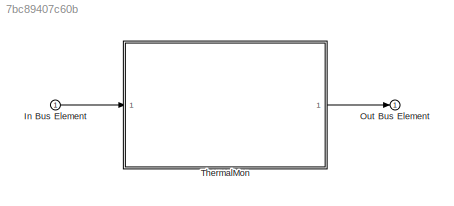
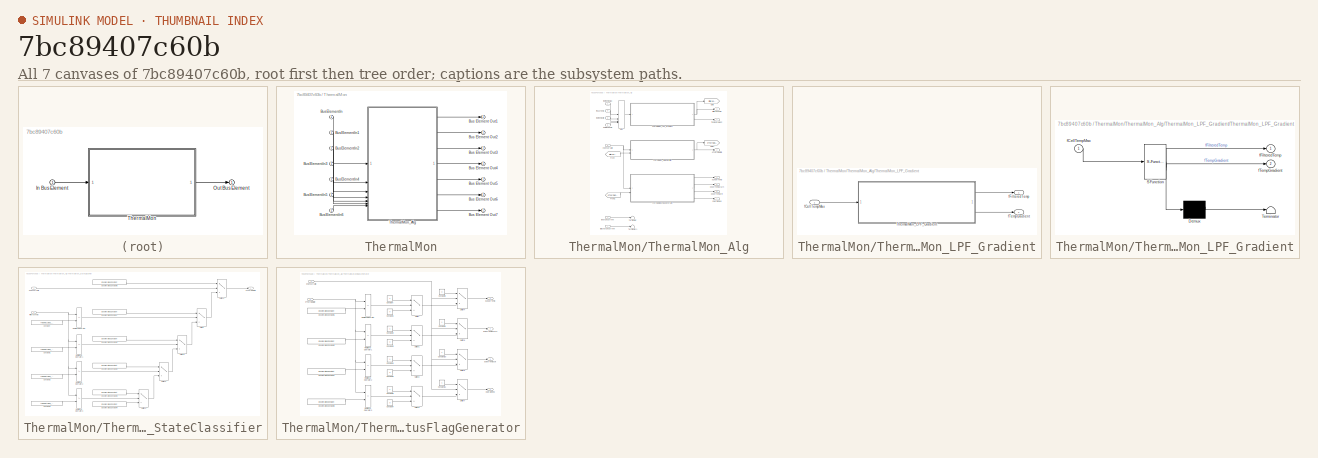
[diagram: thumbnail index - all 7 canvases of the model, root first then tree order]
MODEL slx_7bc89407c60b
KIND model
CONFIG AbsTol = auto
CONFIG EnableMultiTasking = off
CONFIG FixedStep = auto
CONFIG MaxStep = auto
CONFIG MinStep = auto
CONFIG RelTol = 1e-3
CONFIG SampleTimeConstraint = Unconstrained
CONFIG SolverName = FixedStepAuto
CONFIG StartTime = 0.0
CONFIG StopTime = 10.0
BLOCK [Inport] In Bus Element
BLOCK [Outport] Out Bus Element
BLOCK [SubSystem] ThermalMon
  RTWFcnNameOpts = Use subsystem name
BLOCK [Outport] ThermalMon/Bus Element Out1
BLOCK [Outport] ThermalMon/Bus Element Out2
BLOCK [Outport] ThermalMon/Bus Element Out3
BLOCK [Outport] ThermalMon/Bus Element Out4
BLOCK [Outport] ThermalMon/Bus Element Out5
BLOCK [Outport] ThermalMon/Bus Element Out6
BLOCK [Outport] ThermalMon/Bus Element Out7
BLOCK [Inport] ThermalMon/BusElementIn
BLOCK [Inport] ThermalMon/BusElementIn1
BLOCK [Inport] ThermalMon/BusElementIn2
BLOCK [Inport] ThermalMon/BusElementIn3
BLOCK [Inport] ThermalMon/BusElementIn4
BLOCK [Inport] ThermalMon/BusElementIn5
BLOCK [Inport] ThermalMon/BusElementIn6
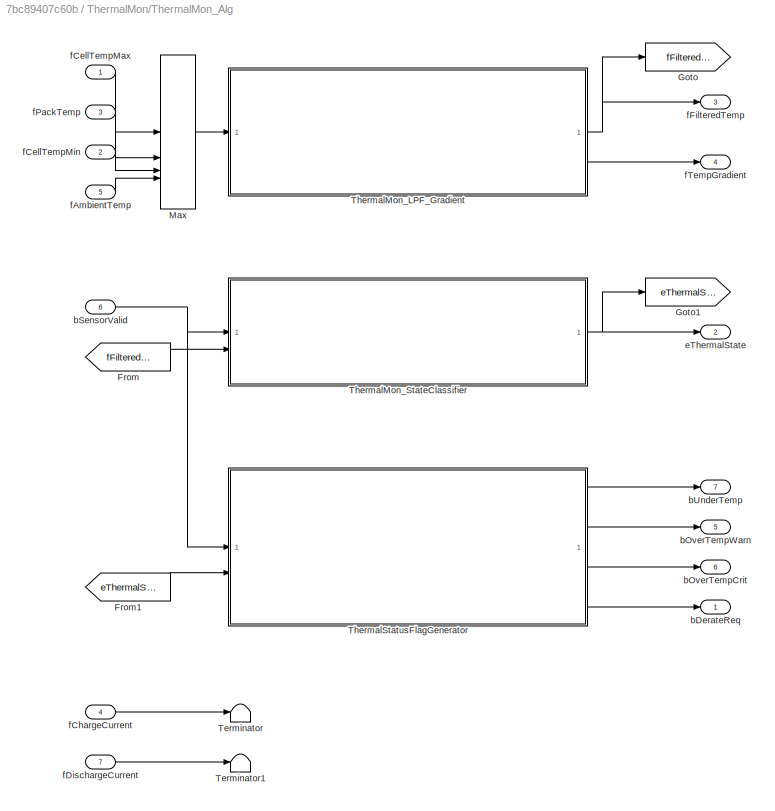
BLOCK [SubSystem] ThermalMon/ThermalMon_Alg
  RTWFcnNameOpts = Use subsystem name
BLOCK [From] ThermalMon/ThermalMon_Alg/From
  GotoTag = fFilteredTemp
BLOCK [From] ThermalMon/ThermalMon_Alg/From1
  GotoTag = eThermalState
BLOCK [Goto] ThermalMon/ThermalMon_Alg/Goto
  GotoTag = fFilteredTemp
BLOCK [Goto] ThermalMon/ThermalMon_Alg/Goto1
  GotoTag = eThermalState
BLOCK [MinMax] ThermalMon/ThermalMon_Alg/Max
  Function = max
  Inputs = 4
  OutDataTypeStr = single
BLOCK [Terminator] ThermalMon/ThermalMon_Alg/Terminator
BLOCK [Terminator] ThermalMon/ThermalMon_Alg/Terminator1
BLOCK [SubSystem] ThermalMon/ThermalMon_Alg/ThermalMon_LPF_Gradient
  RTWFcnNameOpts = Use subsystem name
  RTWSystemCode = Nonreusable function
  TreatAsAtomicUnit = on
BLOCK [SubSystem] ThermalMon/ThermalMon_Alg/ThermalMon_LPF_Gradient/ThermalMon_LPF_Gradient
  ErrorFcn = Stateflow.Translate.translate
  PermitHierarchicalResolution = ExplicitOnly
  SFBlockType = MATLAB Function
  TreatAsAtomicUnit = on
BLOCK [Demux] ThermalMon/ThermalMon_Alg/ThermalMon_LPF_Gradient/ThermalMon_LPF_Gradient/ Demux 
  Outputs = 1
BLOCK [S-Function] ThermalMon/ThermalMon_Alg/ThermalMon_LPF_Gradient/ThermalMon_LPF_Gradient/ SFunction 
  EnableBusSupport = on
  FunctionName = sf_sfun
  Parameters = THERMALMON_FILTER_ALPHA,THERMALMON_TS_SEC
  PortCounts = [1 3]
  SFcnIsStateOwnerBlock = off
  SFunctionDeploymentMode = off
  Tag = Stateflow S-Function 2
BLOCK [Terminator] ThermalMon/ThermalMon_Alg/ThermalMon_LPF_Gradient/ThermalMon_LPF_Gradient/ Terminator 
BLOCK [Inport] ThermalMon/ThermalMon_Alg/ThermalMon_LPF_Gradient/ThermalMon_LPF_Gradient/fCellTempMax
BLOCK [Outport] ThermalMon/ThermalMon_Alg/ThermalMon_LPF_Gradient/ThermalMon_LPF_Gradient/fFilteredTemp
BLOCK [Outport] ThermalMon/ThermalMon_Alg/ThermalMon_LPF_Gradient/ThermalMon_LPF_Gradient/fTempGradient
  Port = 2
BLOCK [Inport] ThermalMon/ThermalMon_Alg/ThermalMon_LPF_Gradient/fCellTempMax
BLOCK [Outport] ThermalMon/ThermalMon_Alg/ThermalMon_LPF_Gradient/fFilteredTemp
BLOCK [Outport] ThermalMon/ThermalMon_Alg/ThermalMon_LPF_Gradient/fTempGradient
  Port = 2
BLOCK [SubSystem] ThermalMon/ThermalMon_Alg/ThermalMon_StateClassifier
  RTWFcnNameOpts = Use subsystem name
  RTWSystemCode = Nonreusable function
  TreatAsAtomicUnit = on
BLOCK [Constant] ThermalMon/ThermalMon_Alg/ThermalMon_StateClassifier/Constant
  NameLocation = top
  Value = THERMALMON_T_UNDER_TH
BLOCK [Constant] ThermalMon/ThermalMon_Alg/ThermalMon_StateClassifier/Constant1
  NameLocation = top
  Value = THERMALMON_T_WARNING_TH
BLOCK [Constant] ThermalMon/ThermalMon_Alg/ThermalMon_StateClassifier/Constant2
  NameLocation = top
  Value = THERMALMON_T_OVERHEAT_TH
BLOCK [Constant] ThermalMon/ThermalMon_Alg/ThermalMon_StateClassifier/Constant3
  NameLocation = top
  Value = THERMALMON_T_CRITICAL_TH
BLOCK [Reference] ThermalMon/ThermalMon_Alg/ThermalMon_StateClassifier/Enumerated Constant  REF=simulink/Sources/Enumerated
Constant
  SourceBlock = simulink/Sources/Enumerated\nConstant
  SourceType = Enumerated Constant
BLOCK [Reference] ThermalMon/ThermalMon_Alg/ThermalMon_StateClassifier/Enumerated Constant1  REF=simulink/Sources/Enumerated
Constant
  SourceBlock = simulink/Sources/Enumerated\nConstant
  SourceType = Enumerated Constant
BLOCK [Reference] ThermalMon/ThermalMon_Alg/ThermalMon_StateClassifier/Enumerated Constant2  REF=simulink/Sources/Enumerated
Constant
  SourceBlock = simulink/Sources/Enumerated\nConstant
  SourceType = Enumerated Constant
BLOCK [Reference] ThermalMon/ThermalMon_Alg/ThermalMon_StateClassifier/Enumerated Constant3  REF=simulink/Sources/Enumerated
Constant
  SourceBlock = simulink/Sources/Enumerated\nConstant
  SourceType = Enumerated Constant
BLOCK [Reference] ThermalMon/ThermalMon_Alg/ThermalMon_StateClassifier/Enumerated Constant4  REF=simulink/Sources/Enumerated
Constant
  SourceBlock = simulink/Sources/Enumerated\nConstant
  SourceType = Enumerated Constant
BLOCK [Reference] ThermalMon/ThermalMon_Alg/ThermalMon_StateClassifier/Enumerated Constant5  REF=simulink/Sources/Enumerated
Constant
  SourceBlock = simulink/Sources/Enumerated\nConstant
  SourceType = Enumerated Constant
BLOCK [RelationalOperator] ThermalMon/ThermalMon_Alg/ThermalMon_StateClassifier/Relational Operator
  InputSameDT = off
  Operator = <=
  OutDataTypeStr = boolean
  RndMeth = Simplest
BLOCK [RelationalOperator] ThermalMon/ThermalMon_Alg/ThermalMon_StateClassifier/Relational Operator1
  InputSameDT = off
  Operator = <=
  OutDataTypeStr = boolean
  RndMeth = Simplest
BLOCK [RelationalOperator] ThermalMon/ThermalMon_Alg/ThermalMon_StateClassifier/Relational Operator2
  InputSameDT = off
  Operator = <=
  OutDataTypeStr = boolean
  RndMeth = Simplest
BLOCK [RelationalOperator] ThermalMon/ThermalMon_Alg/ThermalMon_StateClassifier/Relational Operator3
  InputSameDT = off
  Operator = <=
  OutDataTypeStr = boolean
  RndMeth = Simplest
BLOCK [Switch] ThermalMon/ThermalMon_Alg/ThermalMon_StateClassifier/Switch
  Criteria = u2 ~= 0
  InputSameDT = off
  SaturateOnIntegerOverflow = off
BLOCK [Switch] ThermalMon/ThermalMon_Alg/ThermalMon_StateClassifier/Switch1
  Criteria = u2 ~= 0
  InputSameDT = off
  SaturateOnIntegerOverflow = off
BLOCK [Switch] ThermalMon/ThermalMon_Alg/ThermalMon_StateClassifier/Switch2
  Criteria = u2 ~= 0
  InputSameDT = off
  SaturateOnIntegerOverflow = off
BLOCK [Switch] ThermalMon/ThermalMon_Alg/ThermalMon_StateClassifier/Switch3
  Criteria = u2 ~= 0
  InputSameDT = off
  SaturateOnIntegerOverflow = off
BLOCK [Switch] ThermalMon/ThermalMon_Alg/ThermalMon_StateClassifier/Switch4
  Criteria = u2 ~= 0
  InputSameDT = off
  SaturateOnIntegerOverflow = off
BLOCK [Inport] ThermalMon/ThermalMon_Alg/ThermalMon_StateClassifier/bSensorValid
BLOCK [Outport] ThermalMon/ThermalMon_Alg/ThermalMon_StateClassifier/eThermalState
BLOCK [Inport] ThermalMon/ThermalMon_Alg/ThermalMon_StateClassifier/fFilteredTemp
  Port = 2
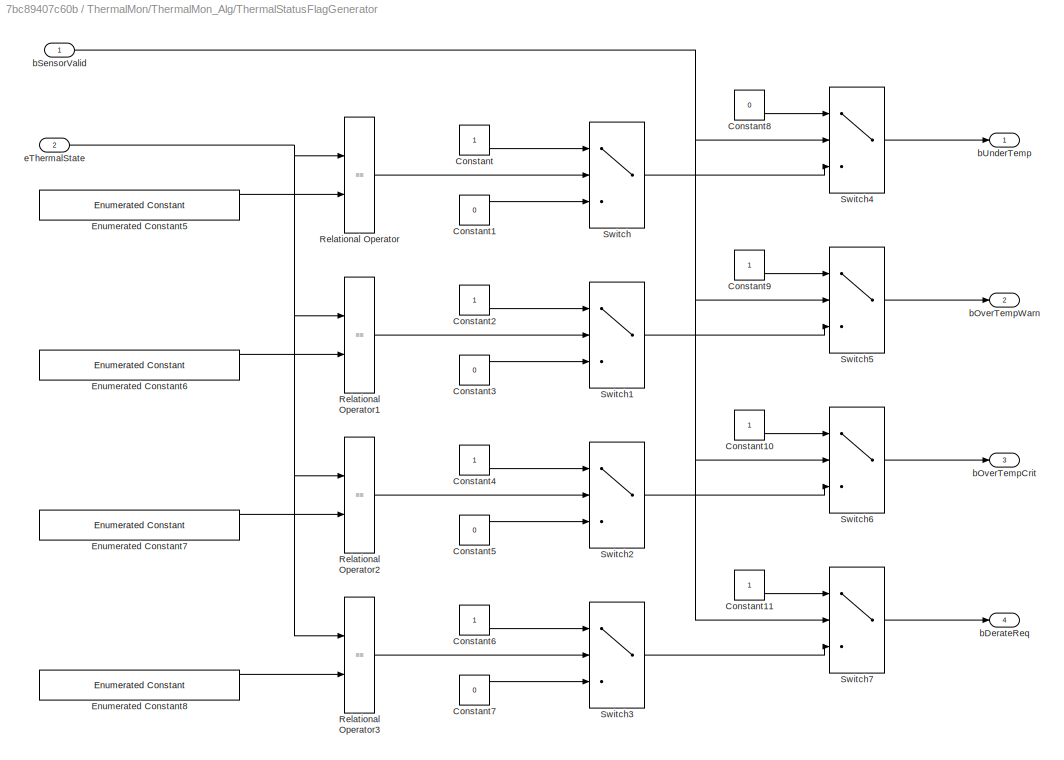
BLOCK [SubSystem] ThermalMon/ThermalMon_Alg/ThermalStatusFlagGenerator
  RTWFcnNameOpts = Use subsystem name
  RTWSystemCode = Nonreusable function
  TreatAsAtomicUnit = on
BLOCK [Constant] ThermalMon/ThermalMon_Alg/ThermalStatusFlagGenerator/Constant
  OutDataTypeStr = boolean
BLOCK [Constant] ThermalMon/ThermalMon_Alg/ThermalStatusFlagGenerator/Constant1
  OutDataTypeStr = boolean
  Value = 0
BLOCK [Constant] ThermalMon/ThermalMon_Alg/ThermalStatusFlagGenerator/Constant10
  OutDataTypeStr = boolean
BLOCK [Constant] ThermalMon/ThermalMon_Alg/ThermalStatusFlagGenerator/Constant11
  OutDataTypeStr = boolean
BLOCK [Constant] ThermalMon/ThermalMon_Alg/ThermalStatusFlagGenerator/Constant2
  OutDataTypeStr = boolean
BLOCK [Constant] ThermalMon/ThermalMon_Alg/ThermalStatusFlagGenerator/Constant3
  OutDataTypeStr = boolean
  Value = 0
BLOCK [Constant] ThermalMon/ThermalMon_Alg/ThermalStatusFlagGenerator/Constant4
  OutDataTypeStr = boolean
BLOCK [Constant] ThermalMon/ThermalMon_Alg/ThermalStatusFlagGenerator/Constant5
  OutDataTypeStr = boolean
  Value = 0
BLOCK [Constant] ThermalMon/ThermalMon_Alg/ThermalStatusFlagGenerator/Constant6
  OutDataTypeStr = boolean
BLOCK [Constant] ThermalMon/ThermalMon_Alg/ThermalStatusFlagGenerator/Constant7
  OutDataTypeStr = boolean
  Value = 0
BLOCK [Constant] ThermalMon/ThermalMon_Alg/ThermalStatusFlagGenerator/Constant8
  OutDataTypeStr = boolean
  Value = 0
BLOCK [Constant] ThermalMon/ThermalMon_Alg/ThermalStatusFlagGenerator/Constant9
  OutDataTypeStr = boolean
BLOCK [Reference] ThermalMon/ThermalMon_Alg/ThermalStatusFlagGenerator/Enumerated Constant5  REF=simulink/Sources/Enumerated
Constant
  SourceBlock = simulink/Sources/Enumerated\nConstant
  SourceType = Enumerated Constant
BLOCK [Reference] ThermalMon/ThermalMon_Alg/ThermalStatusFlagGenerator/Enumerated Constant6  REF=simulink/Sources/Enumerated
Constant
  SourceBlock = simulink/Sources/Enumerated\nConstant
  SourceType = Enumerated Constant
BLOCK [Reference] ThermalMon/ThermalMon_Alg/ThermalStatusFlagGenerator/Enumerated Constant7  REF=simulink/Sources/Enumerated
Constant
  SourceBlock = simulink/Sources/Enumerated\nConstant
  SourceType = Enumerated Constant
BLOCK [Reference] ThermalMon/ThermalMon_Alg/ThermalStatusFlagGenerator/Enumerated Constant8  REF=simulink/Sources/Enumerated
Constant
  SourceBlock = simulink/Sources/Enumerated\nConstant
  SourceType = Enumerated Constant
BLOCK [RelationalOperator] ThermalMon/ThermalMon_Alg/ThermalStatusFlagGenerator/Relational Operator
  InputSameDT = off
  Operator = ==
  OutDataTypeStr = boolean
  RndMeth = Simplest
BLOCK [RelationalOperator] ThermalMon/ThermalMon_Alg/ThermalStatusFlagGenerator/Relational Operator1
  InputSameDT = off
  Operator = ==
  OutDataTypeStr = boolean
  RndMeth = Simplest
BLOCK [RelationalOperator] ThermalMon/ThermalMon_Alg/ThermalStatusFlagGenerator/Relational Operator2
  InputSameDT = off
  Operator = ==
  OutDataTypeStr = boolean
  RndMeth = Simplest
BLOCK [RelationalOperator] ThermalMon/ThermalMon_Alg/ThermalStatusFlagGenerator/Relational Operator3
  InputSameDT = off
  Operator = ==
  OutDataTypeStr = boolean
  RndMeth = Simplest
BLOCK [Switch] ThermalMon/ThermalMon_Alg/ThermalStatusFlagGenerator/Switch
  Criteria = u2 ~= 0
  InputSameDT = off
  SaturateOnIntegerOverflow = off
BLOCK [Switch] ThermalMon/ThermalMon_Alg/ThermalStatusFlagGenerator/Switch1
  Criteria = u2 ~= 0
  InputSameDT = off
  SaturateOnIntegerOverflow = off
BLOCK [Switch] ThermalMon/ThermalMon_Alg/ThermalStatusFlagGenerator/Switch2
  Criteria = u2 ~= 0
  InputSameDT = off
  SaturateOnIntegerOverflow = off
BLOCK [Switch] ThermalMon/ThermalMon_Alg/ThermalStatusFlagGenerator/Switch3
  Criteria = u2 ~= 0
  InputSameDT = off
  SaturateOnIntegerOverflow = off
BLOCK [Switch] ThermalMon/ThermalMon_Alg/ThermalStatusFlagGenerator/Switch4
  Criteria = u2 ~= 0
  InputSameDT = off
  SaturateOnIntegerOverflow = off
BLOCK [Switch] ThermalMon/ThermalMon_Alg/ThermalStatusFlagGenerator/Switch5
  Criteria = u2 ~= 0
  InputSameDT = off
  SaturateOnIntegerOverflow = off
BLOCK [Switch] ThermalMon/ThermalMon_Alg/ThermalStatusFlagGenerator/Switch6
  Criteria = u2 ~= 0
  InputSameDT = off
  SaturateOnIntegerOverflow = off
BLOCK [Switch] ThermalMon/ThermalMon_Alg/ThermalStatusFlagGenerator/Switch7
  Criteria = u2 ~= 0
  InputSameDT = off
  SaturateOnIntegerOverflow = off
BLOCK [Outport] ThermalMon/ThermalMon_Alg/ThermalStatusFlagGenerator/bDerateReq
  Port = 4
BLOCK [Outport] ThermalMon/ThermalMon_Alg/ThermalStatusFlagGenerator/bOverTempCrit
  Port = 3
BLOCK [Outport] ThermalMon/ThermalMon_Alg/ThermalStatusFlagGenerator/bOverTempWarn
  Port = 2
BLOCK [Inport] ThermalMon/ThermalMon_Alg/ThermalStatusFlagGenerator/bSensorValid
BLOCK [Outport] ThermalMon/ThermalMon_Alg/ThermalStatusFlagGenerator/bUnderTemp
BLOCK [Inport] ThermalMon/ThermalMon_Alg/ThermalStatusFlagGenerator/eThermalState
  Port = 2
BLOCK [Outport] ThermalMon/ThermalMon_Alg/bDerateReq
  OutDataTypeStr = boolean
BLOCK [Outport] ThermalMon/ThermalMon_Alg/bOverTempCrit
  OutDataTypeStr = boolean
  Port = 6
BLOCK [Outport] ThermalMon/ThermalMon_Alg/bOverTempWarn
  OutDataTypeStr = boolean
  Port = 5
BLOCK [Inport] ThermalMon/ThermalMon_Alg/bSensorValid
  OutDataTypeStr = boolean
  Port = 6
BLOCK [Outport] ThermalMon/ThermalMon_Alg/bUnderTemp
  OutDataTypeStr = boolean
  Port = 7
BLOCK [Outport] ThermalMon/ThermalMon_Alg/eThermalState
  OutDataTypeStr = Enum: ThermalState_e
  Port = 2
BLOCK [Inport] ThermalMon/ThermalMon_Alg/fAmbientTemp
  OutDataTypeStr = single
  Port = 5
BLOCK [Inport] ThermalMon/ThermalMon_Alg/fCellTempMax
  OutDataTypeStr = single
BLOCK [Inport] ThermalMon/ThermalMon_Alg/fCellTempMin
  OutDataTypeStr = single
  Port = 2
BLOCK [Inport] ThermalMon/ThermalMon_Alg/fChargeCurrent
  OutDataTypeStr = single
  Port = 4
BLOCK [Inport] ThermalMon/ThermalMon_Alg/fDischargeCurrent
  OutDataTypeStr = single
  Port = 7
BLOCK [Outport] ThermalMon/ThermalMon_Alg/fFilteredTemp
  OutDataTypeStr = single
  Port = 3
BLOCK [Inport] ThermalMon/ThermalMon_Alg/fPackTemp
  OutDataTypeStr = single
  Port = 3
BLOCK [Outport] ThermalMon/ThermalMon_Alg/fTempGradient
  OutDataTypeStr = single
  Port = 4
LINE In Bus Element:1 -> ThermalMon:1
LINE ThermalMon/BusElementIn1:1 -> ThermalMon/ThermalMon_Alg:2
LINE ThermalMon/BusElementIn2:1 -> ThermalMon/ThermalMon_Alg:3
LINE ThermalMon/BusElementIn3:1 -> ThermalMon/ThermalMon_Alg:4
LINE ThermalMon/BusElementIn4:1 -> ThermalMon/ThermalMon_Alg:5
LINE ThermalMon/BusElementIn5:1 -> ThermalMon/ThermalMon_Alg:6
LINE ThermalMon/BusElementIn6:1 -> ThermalMon/ThermalMon_Alg:7
LINE ThermalMon/BusElementIn:1 -> ThermalMon/ThermalMon_Alg:1
LINE ThermalMon/ThermalMon_Alg/From1:1 -> ThermalMon/ThermalMon_Alg/ThermalStatusFlagGenerator:2
LINE ThermalMon/ThermalMon_Alg/From:1 -> ThermalMon/ThermalMon_Alg/ThermalMon_StateClassifier:2
LINE ThermalMon/ThermalMon_Alg/Max:1 -> ThermalMon/ThermalMon_Alg/ThermalMon_LPF_Gradient:1
LINE ThermalMon/ThermalMon_Alg/ThermalMon_LPF_Gradient/ThermalMon_LPF_Gradient:1 -> ThermalMon/ThermalMon_Alg/ThermalMon_LPF_Gradient/fFilteredTemp:1
LINE ThermalMon/ThermalMon_Alg/ThermalMon_LPF_Gradient/ThermalMon_LPF_Gradient:2 -> ThermalMon/ThermalMon_Alg/ThermalMon_LPF_Gradient/fTempGradient:1
LINE ThermalMon/ThermalMon_Alg/ThermalMon_LPF_Gradient/fCellTempMax:1 -> ThermalMon/ThermalMon_Alg/ThermalMon_LPF_Gradient/ThermalMon_LPF_Gradient:1
NET ThermalMon/ThermalMon_Alg/ThermalMon_LPF_Gradient:1 -> ThermalMon/ThermalMon_Alg/Goto:1, ThermalMon/ThermalMon_Alg/fFilteredTemp:1
LINE ThermalMon/ThermalMon_Alg/ThermalMon_LPF_Gradient:2 -> ThermalMon/ThermalMon_Alg/fTempGradient:1
LINE ThermalMon/ThermalMon_Alg/ThermalMon_StateClassifier/Constant1:1 -> ThermalMon/ThermalMon_Alg/ThermalMon_StateClassifier/Relational Operator1:2
LINE ThermalMon/ThermalMon_Alg/ThermalMon_StateClassifier/Constant2:1 -> ThermalMon/ThermalMon_Alg/ThermalMon_StateClassifier/Relational Operator2:2
LINE ThermalMon/ThermalMon_Alg/ThermalMon_StateClassifier/Constant3:1 -> ThermalMon/ThermalMon_Alg/ThermalMon_StateClassifier/Relational Operator3:2
LINE ThermalMon/ThermalMon_Alg/ThermalMon_StateClassifier/Constant:1 -> ThermalMon/ThermalMon_Alg/ThermalMon_StateClassifier/Relational Operator:2
LINE ThermalMon/ThermalMon_Alg/ThermalMon_StateClassifier/Enumerated Constant1:1 -> ThermalMon/ThermalMon_Alg/ThermalMon_StateClassifier/Switch1:1
LINE ThermalMon/ThermalMon_Alg/ThermalMon_StateClassifier/Enumerated Constant2:1 -> ThermalMon/ThermalMon_Alg/ThermalMon_StateClassifier/Switch2:1
LINE ThermalMon/ThermalMon_Alg/ThermalMon_StateClassifier/Enumerated Constant3:1 -> ThermalMon/ThermalMon_Alg/ThermalMon_StateClassifier/Switch3:1
LINE ThermalMon/ThermalMon_Alg/ThermalMon_StateClassifier/Enumerated Constant4:1 -> ThermalMon/ThermalMon_Alg/ThermalMon_StateClassifier/Switch3:3
LINE ThermalMon/ThermalMon_Alg/ThermalMon_StateClassifier/Enumerated Constant5:1 -> ThermalMon/ThermalMon_Alg/ThermalMon_StateClassifier/Switch4:1
LINE ThermalMon/ThermalMon_Alg/ThermalMon_StateClassifier/Enumerated Constant:1 -> ThermalMon/ThermalMon_Alg/ThermalMon_StateClassifier/Switch:1
LINE ThermalMon/ThermalMon_Alg/ThermalMon_StateClassifier/Relational Operator1:1 -> ThermalMon/ThermalMon_Alg/ThermalMon_StateClassifier/Switch1:2
LINE ThermalMon/ThermalMon_Alg/ThermalMon_StateClassifier/Relational Operator2:1 -> ThermalMon/ThermalMon_Alg/ThermalMon_StateClassifier/Switch2:2
LINE ThermalMon/ThermalMon_Alg/ThermalMon_StateClassifier/Relational Operator3:1 -> ThermalMon/ThermalMon_Alg/ThermalMon_StateClassifier/Switch3:2
LINE ThermalMon/ThermalMon_Alg/ThermalMon_StateClassifier/Relational Operator:1 -> ThermalMon/ThermalMon_Alg/ThermalMon_StateClassifier/Switch:2
LINE ThermalMon/ThermalMon_Alg/ThermalMon_StateClassifier/Switch1:1 -> ThermalMon/ThermalMon_Alg/ThermalMon_StateClassifier/Switch:3
LINE ThermalMon/ThermalMon_Alg/ThermalMon_StateClassifier/Switch2:1 -> ThermalMon/ThermalMon_Alg/ThermalMon_StateClassifier/Switch1:3
LINE ThermalMon/ThermalMon_Alg/ThermalMon_StateClassifier/Switch3:1 -> ThermalMon/ThermalMon_Alg/ThermalMon_StateClassifier/Switch2:3
LINE ThermalMon/ThermalMon_Alg/ThermalMon_StateClassifier/Switch4:1 -> ThermalMon/ThermalMon_Alg/ThermalMon_StateClassifier/eThermalState:1
LINE ThermalMon/ThermalMon_Alg/ThermalMon_StateClassifier/Switch:1 -> ThermalMon/ThermalMon_Alg/ThermalMon_StateClassifier/Switch4:3
LINE ThermalMon/ThermalMon_Alg/ThermalMon_StateClassifier/bSensorValid:1 -> ThermalMon/ThermalMon_Alg/ThermalMon_StateClassifier/Switch4:2
NET ThermalMon/ThermalMon_Alg/ThermalMon_StateClassifier/fFilteredTemp:1 -> ThermalMon/ThermalMon_Alg/ThermalMon_StateClassifier/Relational Operator1:1, ThermalMon/ThermalMon_Alg/ThermalMon_StateClassifier/Relational Operator2:1, ThermalMon/ThermalMon_Alg/ThermalMon_StateClassifier/Relational Operator3:1, ThermalMon/ThermalMon_Alg/ThermalMon_StateClassifier/Relational Operator:1
NET ThermalMon/ThermalMon_Alg/ThermalMon_StateClassifier:1 -> ThermalMon/ThermalMon_Alg/Goto1:1, ThermalMon/ThermalMon_Alg/eThermalState:1
LINE ThermalMon/ThermalMon_Alg/ThermalStatusFlagGenerator/Constant10:1 -> ThermalMon/ThermalMon_Alg/ThermalStatusFlagGenerator/Switch6:1
LINE ThermalMon/ThermalMon_Alg/ThermalStatusFlagGenerator/Constant11:1 -> ThermalMon/ThermalMon_Alg/ThermalStatusFlagGenerator/Switch7:1
LINE ThermalMon/ThermalMon_Alg/ThermalStatusFlagGenerator/Constant1:1 -> ThermalMon/ThermalMon_Alg/ThermalStatusFlagGenerator/Switch:3
LINE ThermalMon/ThermalMon_Alg/ThermalStatusFlagGenerator/Constant2:1 -> ThermalMon/ThermalMon_Alg/ThermalStatusFlagGenerator/Switch1:1
LINE ThermalMon/ThermalMon_Alg/ThermalStatusFlagGenerator/Constant3:1 -> ThermalMon/ThermalMon_Alg/ThermalStatusFlagGenerator/Switch1:3
LINE ThermalMon/ThermalMon_Alg/ThermalStatusFlagGenerator/Constant4:1 -> ThermalMon/ThermalMon_Alg/ThermalStatusFlagGenerator/Switch2:1
LINE ThermalMon/ThermalMon_Alg/ThermalStatusFlagGenerator/Constant5:1 -> ThermalMon/ThermalMon_Alg/ThermalStatusFlagGenerator/Switch2:3
LINE ThermalMon/ThermalMon_Alg/ThermalStatusFlagGenerator/Constant6:1 -> ThermalMon/ThermalMon_Alg/ThermalStatusFlagGenerator/Switch3:1
LINE ThermalMon/ThermalMon_Alg/ThermalStatusFlagGenerator/Constant7:1 -> ThermalMon/ThermalMon_Alg/ThermalStatusFlagGenerator/Switch3:3
LINE ThermalMon/ThermalMon_Alg/ThermalStatusFlagGenerator/Constant8:1 -> ThermalMon/ThermalMon_Alg/ThermalStatusFlagGenerator/Switch4:1
LINE ThermalMon/ThermalMon_Alg/ThermalStatusFlagGenerator/Constant9:1 -> ThermalMon/ThermalMon_Alg/ThermalStatusFlagGenerator/Switch5:1
LINE ThermalMon/ThermalMon_Alg/ThermalStatusFlagGenerator/Constant:1 -> ThermalMon/ThermalMon_Alg/ThermalStatusFlagGenerator/Switch:1
LINE ThermalMon/ThermalMon_Alg/ThermalStatusFlagGenerator/Enumerated Constant5:1 -> ThermalMon/ThermalMon_Alg/ThermalStatusFlagGenerator/Relational Operator:2
LINE ThermalMon/ThermalMon_Alg/ThermalStatusFlagGenerator/Enumerated Constant6:1 -> ThermalMon/ThermalMon_Alg/ThermalStatusFlagGenerator/Relational Operator1:2
LINE ThermalMon/ThermalMon_Alg/ThermalStatusFlagGenerator/Enumerated Constant7:1 -> ThermalMon/ThermalMon_Alg/ThermalStatusFlagGenerator/Relational Operator2:2
LINE ThermalMon/ThermalMon_Alg/ThermalStatusFlagGenerator/Enumerated Constant8:1 -> ThermalMon/ThermalMon_Alg/ThermalStatusFlagGenerator/Relational Operator3:2
LINE ThermalMon/ThermalMon_Alg/ThermalStatusFlagGenerator/Relational Operator1:1 -> ThermalMon/ThermalMon_Alg/ThermalStatusFlagGenerator/Switch1:2
LINE ThermalMon/ThermalMon_Alg/ThermalStatusFlagGenerator/Relational Operator2:1 -> ThermalMon/ThermalMon_Alg/ThermalStatusFlagGenerator/Switch2:2
LINE ThermalMon/ThermalMon_Alg/ThermalStatusFlagGenerator/Relational Operator3:1 -> ThermalMon/ThermalMon_Alg/ThermalStatusFlagGenerator/Switch3:2
LINE ThermalMon/ThermalMon_Alg/ThermalStatusFlagGenerator/Relational Operator:1 -> ThermalMon/ThermalMon_Alg/ThermalStatusFlagGenerator/Switch:2
LINE ThermalMon/ThermalMon_Alg/ThermalStatusFlagGenerator/Switch1:1 -> ThermalMon/ThermalMon_Alg/ThermalStatusFlagGenerator/Switch5:3
LINE ThermalMon/ThermalMon_Alg/ThermalStatusFlagGenerator/Switch2:1 -> ThermalMon/ThermalMon_Alg/ThermalStatusFlagGenerator/Switch6:3
LINE ThermalMon/ThermalMon_Alg/ThermalStatusFlagGenerator/Switch3:1 -> ThermalMon/ThermalMon_Alg/ThermalStatusFlagGenerator/Switch7:3
LINE ThermalMon/ThermalMon_Alg/ThermalStatusFlagGenerator/Switch4:1 -> ThermalMon/ThermalMon_Alg/ThermalStatusFlagGenerator/bUnderTemp:1
LINE ThermalMon/ThermalMon_Alg/ThermalStatusFlagGenerator/Switch5:1 -> ThermalMon/ThermalMon_Alg/ThermalStatusFlagGenerator/bOverTempWarn:1
LINE ThermalMon/ThermalMon_Alg/ThermalStatusFlagGenerator/Switch6:1 -> ThermalMon/ThermalMon_Alg/ThermalStatusFlagGenerator/bOverTempCrit:1
LINE ThermalMon/ThermalMon_Alg/ThermalStatusFlagGenerator/Switch7:1 -> ThermalMon/ThermalMon_Alg/ThermalStatusFlagGenerator/bDerateReq:1
LINE ThermalMon/ThermalMon_Alg/ThermalStatusFlagGenerator/Switch:1 -> ThermalMon/ThermalMon_Alg/ThermalStatusFlagGenerator/Switch4:3
NET ThermalMon/ThermalMon_Alg/ThermalStatusFlagGenerator/bSensorValid:1 -> ThermalMon/ThermalMon_Alg/ThermalStatusFlagGenerator/Switch4:2, ThermalMon/ThermalMon_Alg/ThermalStatusFlagGenerator/Switch5:2, ThermalMon/ThermalMon_Alg/ThermalStatusFlagGenerator/Switch6:2, ThermalMon/ThermalMon_Alg/ThermalStatusFlagGenerator/Switch7:2
NET ThermalMon/ThermalMon_Alg/ThermalStatusFlagGenerator/eThermalState:1 -> ThermalMon/ThermalMon_Alg/ThermalStatusFlagGenerator/Relational Operator1:1, ThermalMon/ThermalMon_Alg/ThermalStatusFlagGenerator/Relational Operator2:1, ThermalMon/ThermalMon_Alg/ThermalStatusFlagGenerator/Relational Operator3:1, ThermalMon/ThermalMon_Alg/ThermalStatusFlagGenerator/Relational Operator:1
LINE ThermalMon/ThermalMon_Alg/ThermalStatusFlagGenerator:1 -> ThermalMon/ThermalMon_Alg/bUnderTemp:1
LINE ThermalMon/ThermalMon_Alg/ThermalStatusFlagGenerator:2 -> ThermalMon/ThermalMon_Alg/bOverTempWarn:1
LINE ThermalMon/ThermalMon_Alg/ThermalStatusFlagGenerator:3 -> ThermalMon/ThermalMon_Alg/bOverTempCrit:1
LINE ThermalMon/ThermalMon_Alg/ThermalStatusFlagGenerator:4 -> ThermalMon/ThermalMon_Alg/bDerateReq:1
NET ThermalMon/ThermalMon_Alg/bSensorValid:1 -> ThermalMon/ThermalMon_Alg/ThermalMon_StateClassifier:1, ThermalMon/ThermalMon_Alg/ThermalStatusFlagGenerator:1
LINE ThermalMon/ThermalMon_Alg/fAmbientTemp:1 -> ThermalMon/ThermalMon_Alg/Max:4
LINE ThermalMon/ThermalMon_Alg/fCellTempMax:1 -> ThermalMon/ThermalMon_Alg/Max:1
LINE ThermalMon/ThermalMon_Alg/fCellTempMin:1 -> ThermalMon/ThermalMon_Alg/Max:3
LINE ThermalMon/ThermalMon_Alg/fChargeCurrent:1 -> ThermalMon/ThermalMon_Alg/Terminator:1
LINE ThermalMon/ThermalMon_Alg/fDischargeCurrent:1 -> ThermalMon/ThermalMon_Alg/Terminator1:1
LINE ThermalMon/ThermalMon_Alg/fPackTemp:1 -> ThermalMon/ThermalMon_Alg/Max:2
LINE ThermalMon/ThermalMon_Alg:1 -> ThermalMon/Bus Element Out1:1
LINE ThermalMon/ThermalMon_Alg:2 -> ThermalMon/Bus Element Out2:1
LINE ThermalMon/ThermalMon_Alg:3 -> ThermalMon/Bus Element Out3:1
LINE ThermalMon/ThermalMon_Alg:4 -> ThermalMon/Bus Element Out4:1
LINE ThermalMon/ThermalMon_Alg:5 -> ThermalMon/Bus Element Out5:1
LINE ThermalMon/ThermalMon_Alg:6 -> ThermalMon/Bus Element Out6:1
LINE ThermalMon/ThermalMon_Alg:7 -> ThermalMon/Bus Element Out7:1
LINE ThermalMon:1 -> Out Bus Element:1
note: NET lines group one-source signal fan-out (src -> all destinations, sorted); 1:1 wires keep LINE
CHART ThermalMon/ThermalMon_Alg/ThermalMon_LPF_Gradient/ThermalMon_LPF_Gradient states=1 transitions=1
  STATE_LABEL 'eML_blk_kernel()'
  STATE_LABEL 'SCRIPT:\nfunction [fFilteredTemp,fTempGradient] = ThermalMon_LPF_Gradient(fCellTempMax, THERMALMON_FILTER_ALPHA, THERMALMON_TS_SEC)\n    %#codegen\n    % Low-pass filter for battery temperature (ThermalMonitor)\n    \n    % === Persistent variable (memory) ===\n    persistent fFilteredTemp_prev\n    if isempty(fFilteredTemp_prev)\n        % Initialization at first execution\n        fFilteredTemp_prev = fC...<+542ch>'
CHART  states=0 transitions=0
